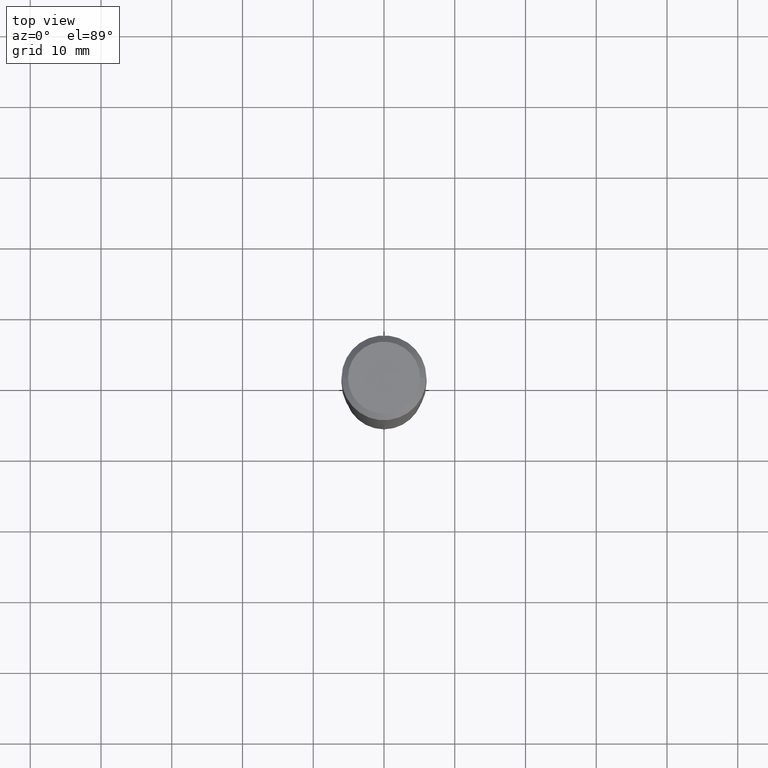
[diagram: clean part render]
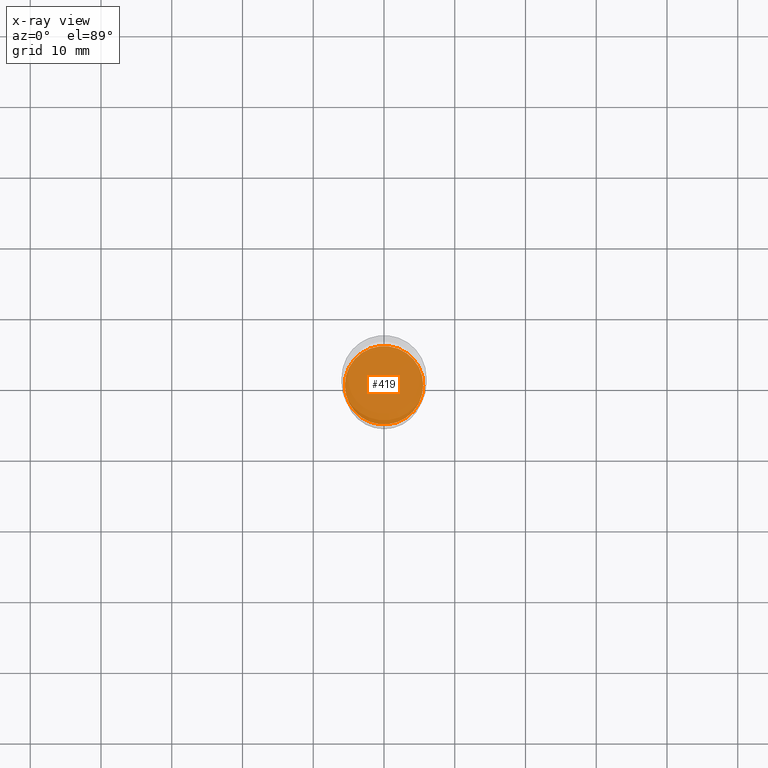
[diagram: x-ray — body ghosted, one internal face saturated and labeled with its STEP entity id]
A machine part, top view, then the same camera in x-ray: the body is ghosted and one INTERNAL B-rep face — a face not visible from any outside direction — is saturated and labeled: STEP entity #419.
In plain terms, the highlighted planar face has unit normal (-0, 0, 1).
Its self-contained STEP definition (entity closure, byte-faithful):
#31 = ORIENTED_EDGE ( 'NONE', *, *, #401, .F. ) ;
#70 = CARTESIAN_POINT ( 'NONE',  ( 5.969144809017299038E-29, -8.522356799982232966E-15, -2.440900000000000070 ) ) ;
#114 = CARTESIAN_POINT ( 'NONE',  ( 0.2182499999999999996, -1.004638840438726159E-14, -2.440900000000000070 ) ) ;
#142 = CARTESIAN_POINT ( 'NONE',  ( 5.969144809017299038E-29, -8.522356799982232966E-15, -2.440900000000000070 ) ) ;
#185 = FACE_OUTER_BOUND ( 'NONE', #323, .T. ) ;
#241 = DIRECTION ( 'NONE',  ( 1.000000000000000000, -6.982962677686269077E-15, 0.000000000000000000 ) ) ;
#255 = DIRECTION ( 'NONE',  ( 1.000000000000000000, -6.982962677686265922E-15, 4.876176775795935793E-29 ) ) ;
#268 = AXIS2_PLACEMENT_3D ( 'NONE', #142, #451, #255 ) ;
#287 = VERTEX_POINT ( 'NONE', #114 ) ;
#313 = CIRCLE ( 'NONE', #407, 0.2182499999999999996 ) ;
#323 = EDGE_LOOP ( 'NONE', ( #335, #31 ) ) ;
#331 = DIRECTION ( 'NONE',  ( 1.000000000000000000, -6.982962677686269077E-15, 0.000000000000000000 ) ) ;
#335 = ORIENTED_EDGE ( 'NONE', *, *, #443, .F. ) ;
#340 = PLANE ( 'NONE',  #268 ) ;
#346 = CIRCLE ( 'NONE', #424, 0.2182499999999999996 ) ;
#364 = VERTEX_POINT ( 'NONE', #368 ) ;
#368 = CARTESIAN_POINT ( 'NONE',  ( -0.2182499999999999996, -6.968948052011704295E-15, -2.440900000000000070 ) ) ;
#401 = EDGE_CURVE ( 'NONE', #364, #287, #346, .T. ) ;
#405 = DIRECTION ( 'NONE',  ( -2.445468806185136597E-29, 3.491481338843145583E-15, 1.000000000000000000 ) ) ;
#407 = AXIS2_PLACEMENT_3D ( 'NONE', #70, #453, #241 ) ;
#410 = CARTESIAN_POINT ( 'NONE',  ( 5.969144809017299038E-29, -8.522356799982232966E-15, -2.440900000000000070 ) ) ;
#419 = ADVANCED_FACE ( 'NONE', ( #185 ), #340, .F. ) ;
#424 = AXIS2_PLACEMENT_3D ( 'NONE', #410, #405, #331 ) ;
#443 = EDGE_CURVE ( 'NONE', #287, #364, #313, .T. ) ;
#451 = DIRECTION ( 'NONE',  ( -2.438088387897960049E-29, 3.491481338843145188E-15, 1.000000000000000000 ) ) ;
#453 = DIRECTION ( 'NONE',  ( -2.445468806185136597E-29, 3.491481338843145583E-15, 1.000000000000000000 ) ) ;